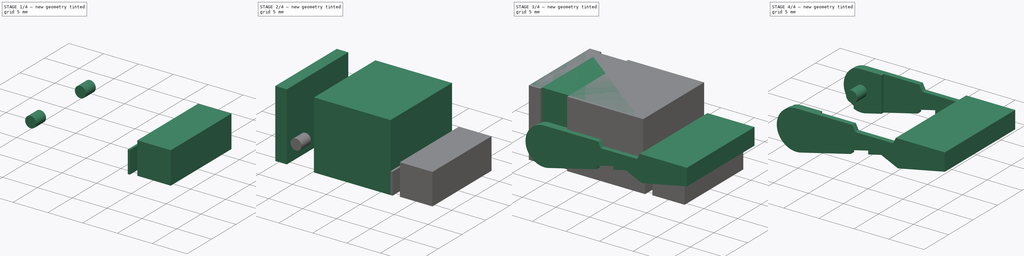
[diagram: build sequence overview — one tinted view per stage of 4, left to right]
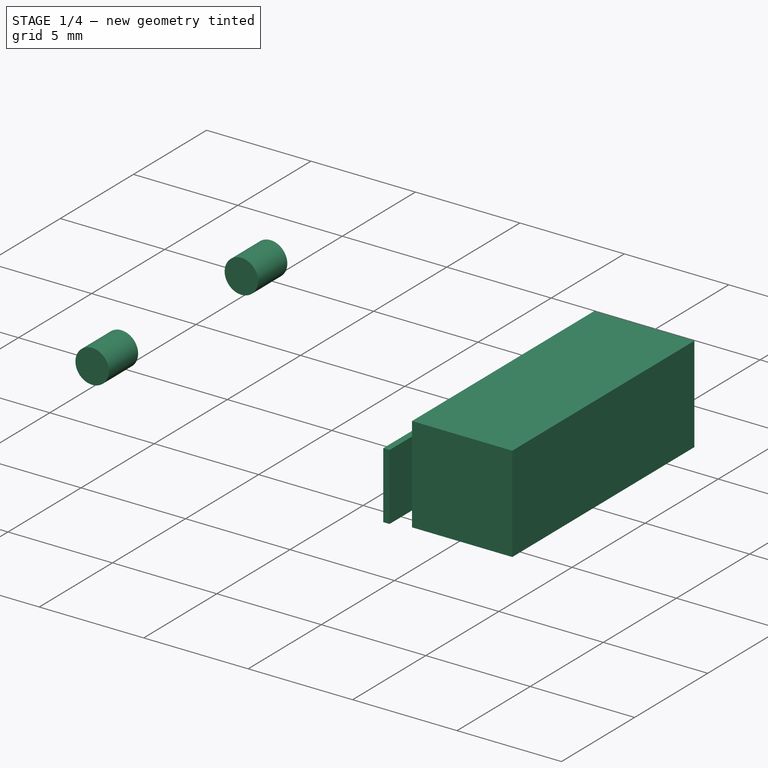
[diagram: stage 1 of 4 — iso view after this stage's code; geometry added in this stage tinted green]
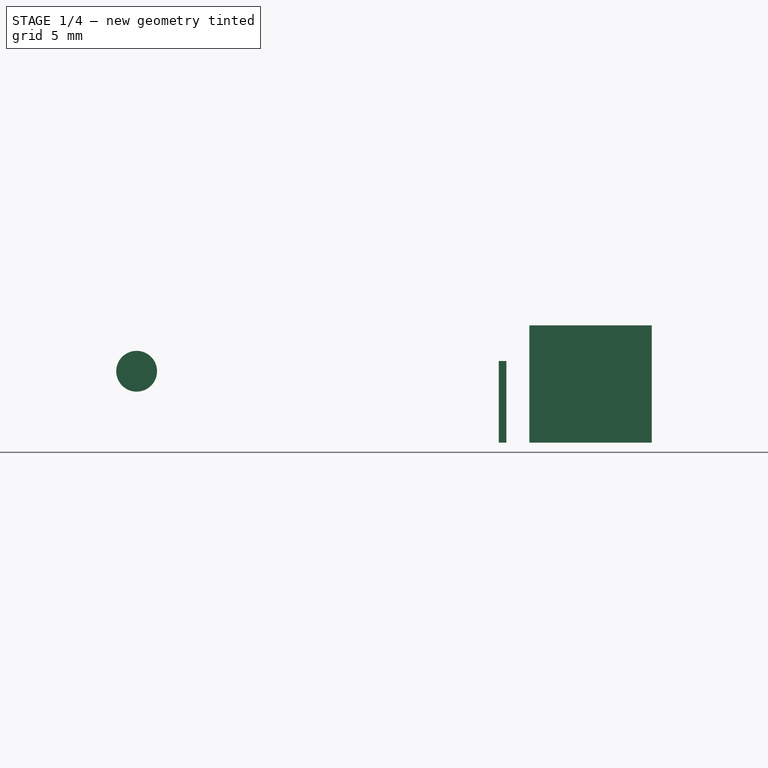
[diagram: stage 1 of 4 — front view after this stage's code; geometry added in this stage tinted green]
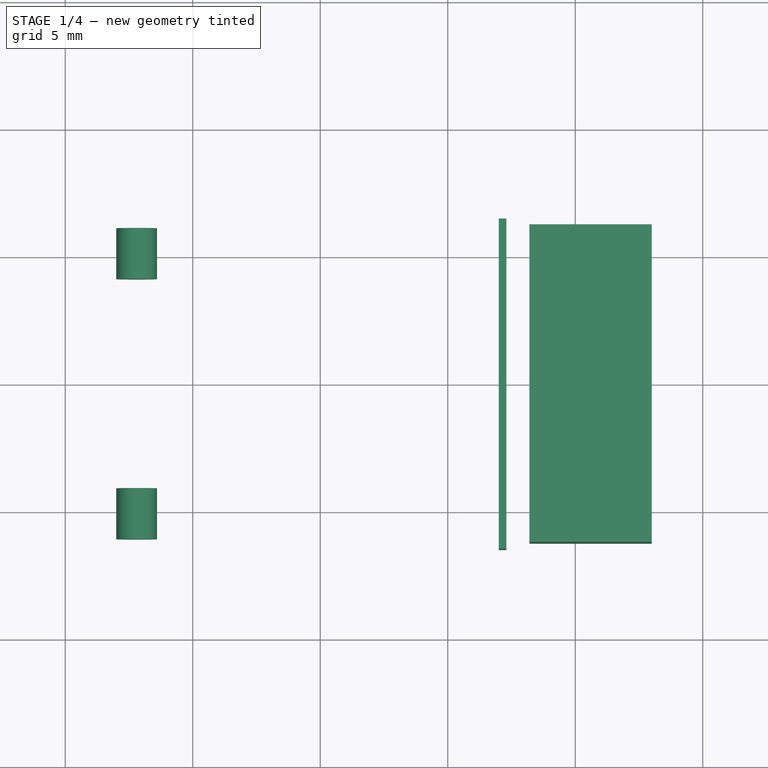
[diagram: stage 1 of 4 — top view after this stage's code; geometry added in this stage tinted green]
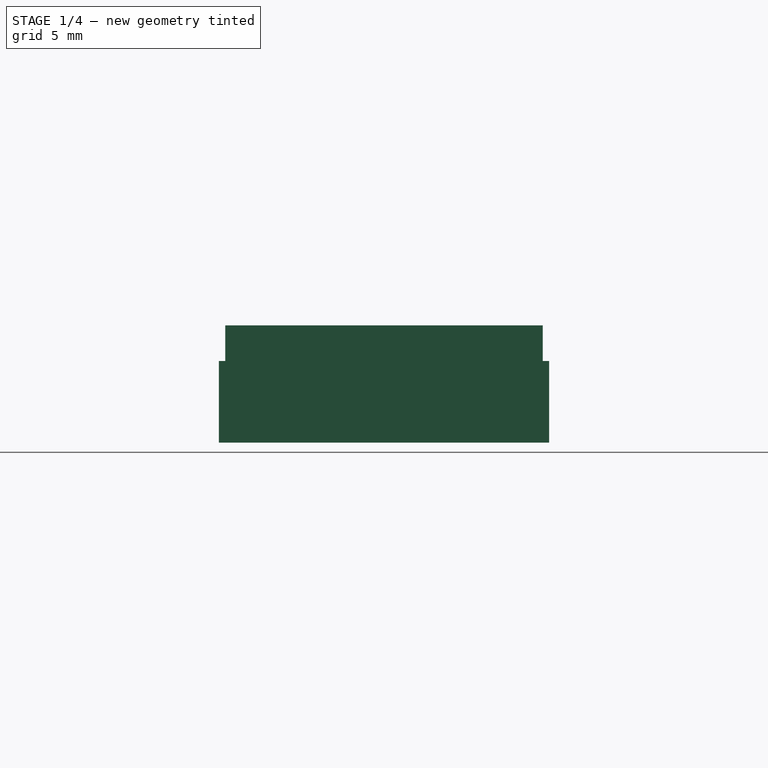
[diagram: stage 1 of 4 — right view after this stage's code; geometry added in this stage tinted green]
FCSTD DOCUMENT  (FreeCAD 0.18R4 (GitTag))
Label: lever
License: All rights reserved
LicenseURL: http://en.wikipedia.org/wiki/All_rights_reserved
objects: Part::Box×5, Part::Cut×3, Part::Compound×2, Part::Cylinder×2, Sketcher::SketchObject×1, Part::Extrusion×1, Part::MultiFuse×1
note: 15 computed .brp shape members not serialized (recipe doc carries the construction recipe); baked Part::Feature solids carry a one-line shape summary decoded from their .brp

FEATURE [Part::Box] Box003  label="Cube003"
  AttacherType = Attacher::AttachEngine3D
  Height = 4.6
  Length = 4.8
  Placement = pos=(18.2,-6.225,0) rot=(0,0,1;0rad)
  Width = 12.45
  expr: Placement.Base.z = 0
  expr: Length = 7.2 - 1.4 - 1
  expr: Placement.Base.y = -Width / 2
  expr: Width = 14.35 - 0.95 * 2
FEATURE [Part::Box] Box004  label="Cube004"
  AttacherType = Attacher::AttachEngine3D
  Height = 3.2
  Length = 0.3
  Placement = pos=(17,-6.475,0) rot=(0,0,1;0rad)
  Width = 12.95
  expr: Height = 5.6 - 2.4
  expr: Placement.Base.z = 0
  expr: Placement.Base.y = -Width / 2
  expr: Width = 12.95
FEATURE [Part::Cylinder] Cylinder
  Angle = 360
  AttacherType = Attacher::AttachEngine3D
  Height = 2
  Placement = pos=(2.8,-4.1,2.8) rot=(1,0,0;1.5708rad)
  Radius = 0.8
FEATURE [Part::Cylinder] Cylinder001
  Angle = 360
  AttacherType = Attacher::AttachEngine3D
  Height = 2
  Placement = pos=(2.8,6.1,2.8) rot=(1,0,0;1.5708rad)
  Radius = 0.8
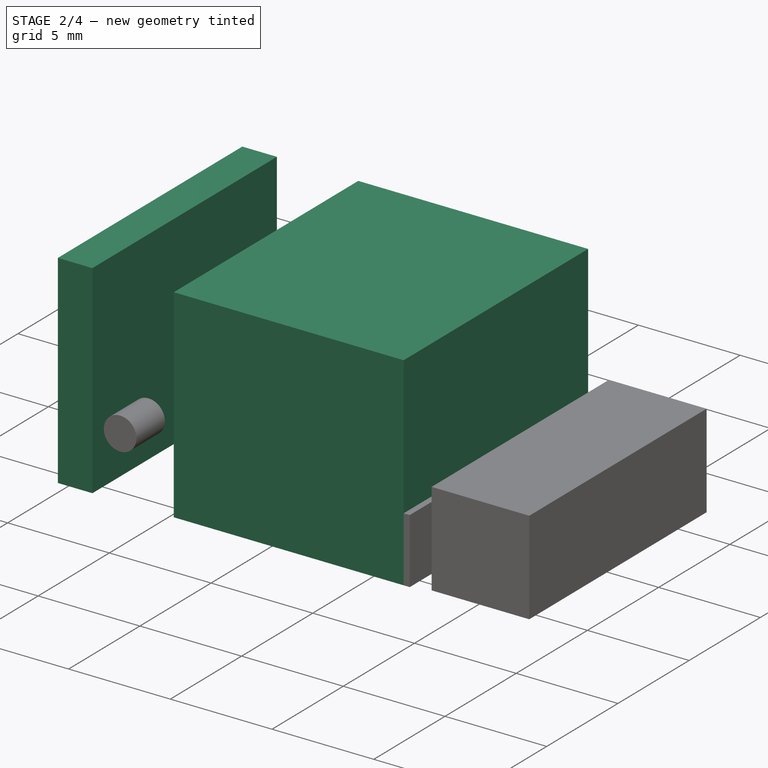
[diagram: stage 2 of 4 — iso view after this stage's code; geometry added in this stage tinted green]
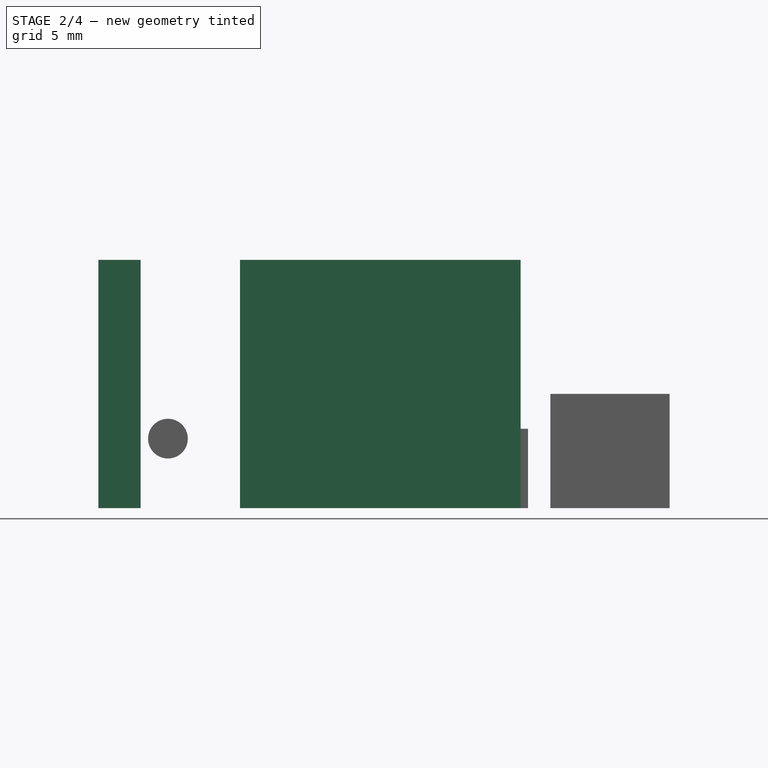
[diagram: stage 2 of 4 — front view after this stage's code; geometry added in this stage tinted green]
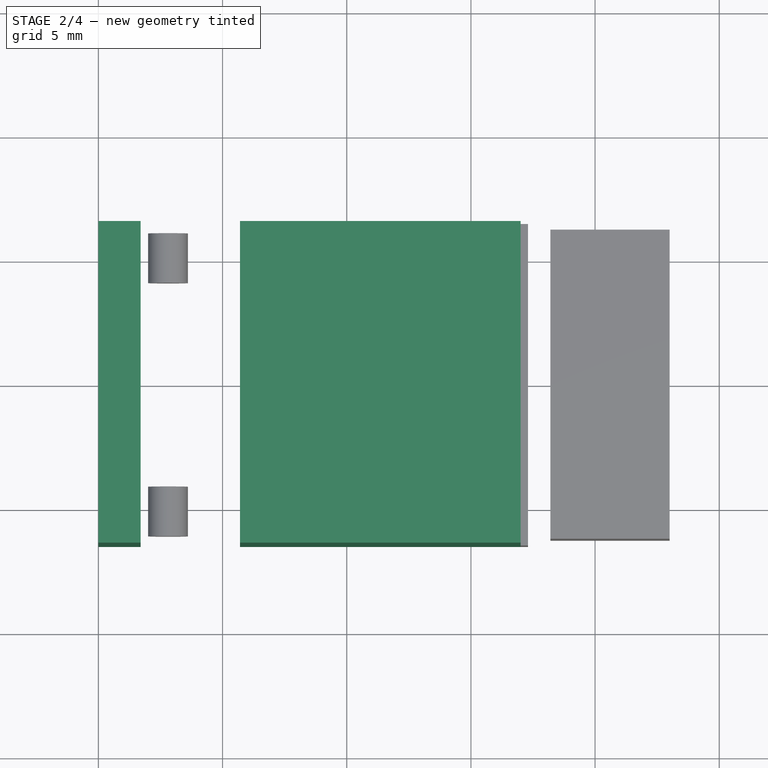
[diagram: stage 2 of 4 — top view after this stage's code; geometry added in this stage tinted green]
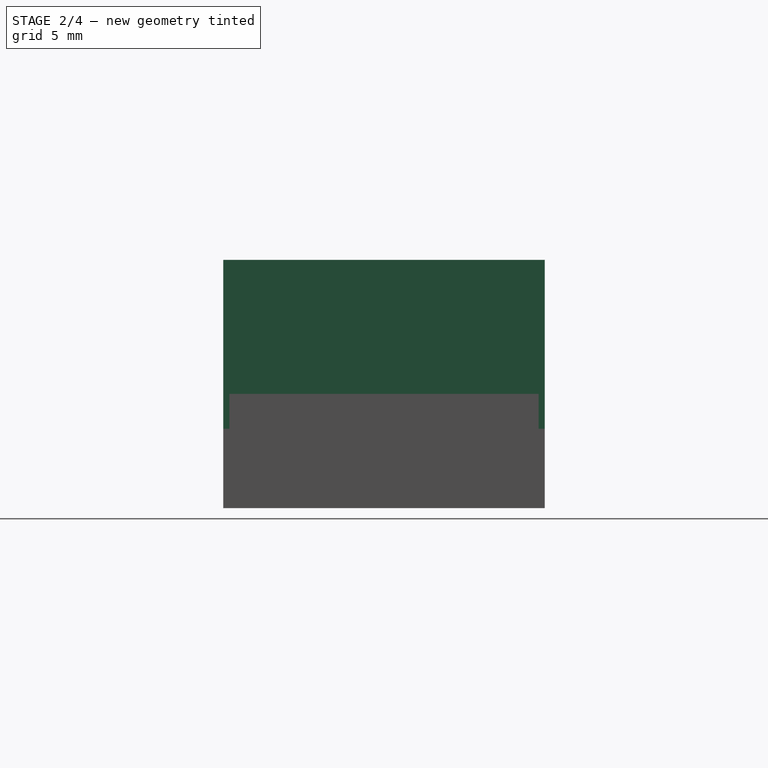
[diagram: stage 2 of 4 — right view after this stage's code; geometry added in this stage tinted green]
FEATURE [Part::Box] Box001  label="Cube001"
  AttacherType = Attacher::AttachEngine3D
  Height = 10
  Length = 1.7
  Placement = pos=(0,-6.475,0) rot=(0,0,1;0rad)
  Width = 12.95
  expr: Placement.Base.y = -Width / 2
FEATURE [Part::Box] Box002  label="Cube002"
  AttacherType = Attacher::AttachEngine3D
  Height = 10
  Length = 11.3
  Placement = pos=(5.7,-6.475,0) rot=(0,0,1;0rad)
  Width = 12.95
  expr: Placement.Base.x = 1.7 + 4
  expr: Placement.Base.y = -Width / 2
FEATURE [Part::Compound] Compound001
  Links = -> [Box003,Box004]
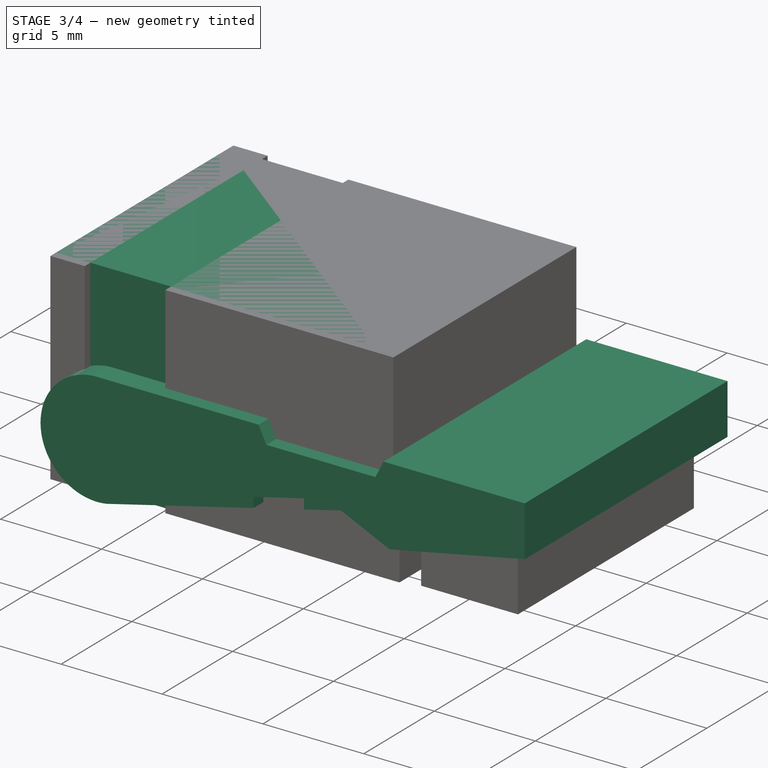
[diagram: stage 3 of 4 — iso view after this stage's code; geometry added in this stage tinted green]
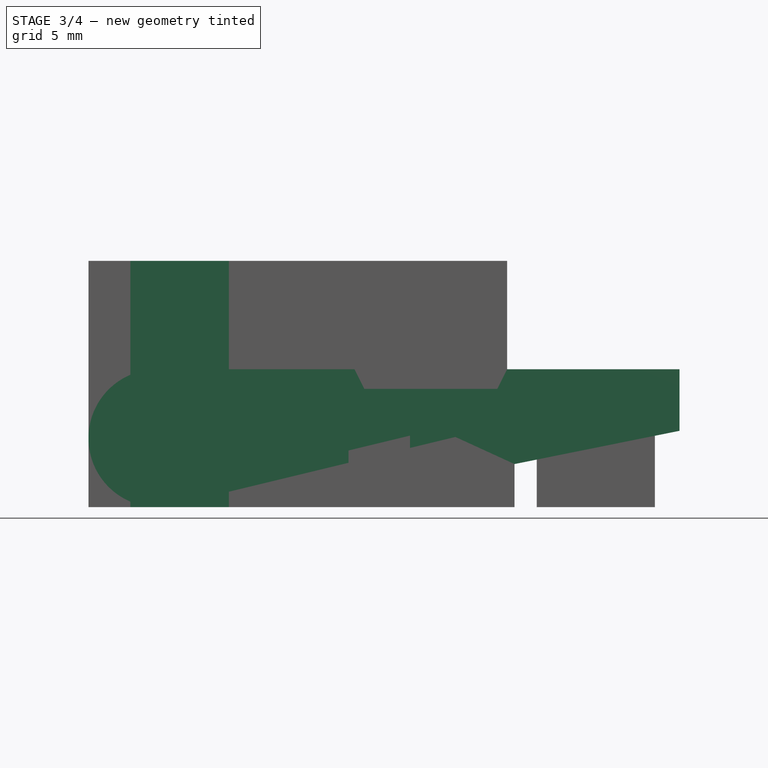
[diagram: stage 3 of 4 — front view after this stage's code; geometry added in this stage tinted green]
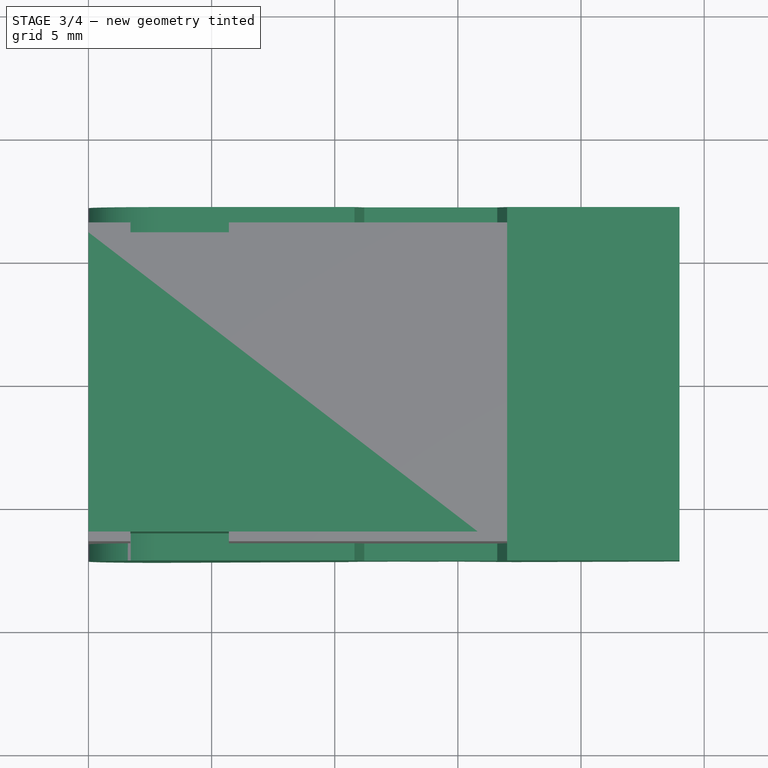
[diagram: stage 3 of 4 — top view after this stage's code; geometry added in this stage tinted green]
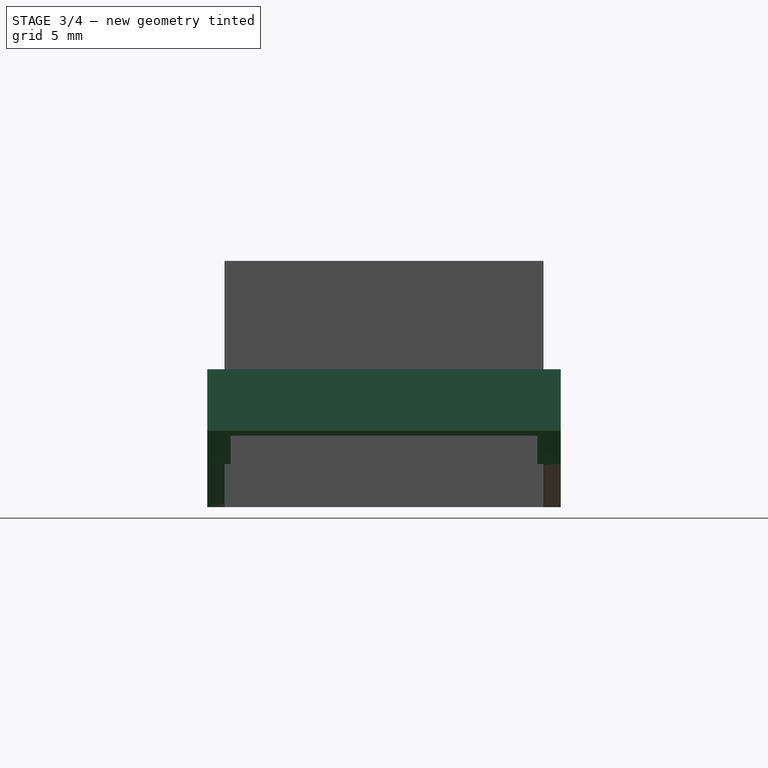
[diagram: stage 3 of 4 — right view after this stage's code; geometry added in this stage tinted green]
FEATURE [Sketcher::SketchObject] Sketch
  Placement = pos=(0,0,0) rot=(1,0,0;1.5708rad)
  expr: Constraints[24] = Constraints.La2
  expr: Constraints.La2 = (Constraints.A2 - 5.4mm) / 2
  expr: Constraints[4] = Sketch.Constraints.R1
  expr: Constraints[3] = Sketch.Constraints.R1
  sketch-geometry (14):
    g0: ArcOfCircle CenterX=2.8 CenterY=2.8 CenterZ=0 NormalX=0 NormalY=0 NormalZ=1 AngleXU=0 Radius=2.8 StartAngle=1.5708 EndAngle=4.88692
    g1: LineSegment StartX=24 StartY=5.6 StartZ=0 EndX=24 EndY=3.1 EndZ=0
    g2: LineSegment StartX=17.3 StartY=1.75 StartZ=0 EndX=24 EndY=3.1 EndZ=0
    g3: LineSegment StartX=17 StartY=5.6 StartZ=0 EndX=24 EndY=5.6 EndZ=0
    g4: LineSegment StartX=2.8 StartY=5.6 StartZ=0 EndX=10.8 EndY=5.6 EndZ=0
    g5: LineSegment StartX=11.2 StartY=4.8 StartZ=0 EndX=16.6 EndY=4.8 EndZ=0
    g6: LineSegment StartX=16.6 StartY=4.8 StartZ=0 EndX=17 EndY=5.6 EndZ=0
    g7: LineSegment StartX=11.2 StartY=4.8 StartZ=0 EndX=10.8 EndY=5.6 EndZ=0
    g8: LineSegment StartX=14.9 StartY=2.85 StartZ=0 EndX=17.3 EndY=1.75 EndZ=0
    g9: LineSegment StartX=10.5564 StartY=1.8 StartZ=0 EndX=10.5564 EndY=2.3 EndZ=0
    g10: LineSegment StartX=13.0564 StartY=2.40434 StartZ=0 EndX=13.0564 EndY=2.90434 EndZ=0
    g11: LineSegment StartX=3.28621 StartY=0.0425383 StartZ=0 EndX=10.5564 EndY=1.8 EndZ=0
    g12: LineSegment StartX=10.5564 StartY=2.3 StartZ=0 EndX=13.0564 EndY=2.90434 EndZ=0
    g13: LineSegment StartX=13.0564 StartY=2.40434 StartZ=0 EndX=14.9 EndY=2.85 EndZ=0
  constraints (43):
    c: Angle(g0) = 3.31613
    c: Vertical(g0,g0)
    c: Radius(g0) = 2.8  'R1'
    c: DistanceX(g-1,g0) = 2.8
    c: DistanceY(g-1,g0) = 2.8
    c: DistanceX(g-1,g1) = 24
    c: Vertical(g1)
    c: Distance(g1) = 2.5
    c: DistanceX(g2,g1) = 6.7
    c: Coincident(g2,g1)
    c: DistanceY(g2,g1) = 3.85
    c: Horizontal(g3)
    c: DistanceY(g-1,g1) = 5.6
    c: Coincident(g3,g1)
    c: Horizontal(g4)
    c: Coincident(g4,g0)
    c: Distance(g4,g3) = 6.2  'A2'
    c: Horizontal(g5)
    c: Coincident(g7,g4)
    c: Coincident(g7,g5)
    c: Coincident(g5,g6)
    c: Coincident(g6,g3)
    c: DistanceY(g5,g3) = 0.8
    c: DistanceX(g5,g3) = 0.4  'La2'
    c: DistanceX(g4,g5) = 0.4
    c: Coincident(g8,g2)
    c: DistanceY(g8,g5) = 1.95
    c: DistanceX(g-1,g8) = 14.9
    c: Vertical(g9)
    c: Distance(g9) = 0.5
    c: Parallel(g10,g9)
    c: Equal(g10,g9)
    c: DistanceY(g9,g4) = 3.3
    c: Coincident(g13,g10)
    c: Coincident(g10,g12)
    c: Coincident(g12,g9)
    c: Coincident(g11,g9)
    c: Coincident(g11,g0)
    c: Coincident(g13,g8)
    c: Parallel(g12,g11)
    c: Parallel(g13,g12)
    c: DistanceX(g9,g10) = 2.5
    c: Distance(g1,g3) = 7
FEATURE [Part::Extrusion] Extrude
  Base = -> Sketch
  Dir = (0,-1,2e-16)
  DirMode = 2
  FaceMakerClass = Part::FaceMakerBullseye
  LengthFwd = 14.35
  LengthRev = 0
  Placement = pos=(0,7.175,0) rot=(0,0,1;0rad)
  Solid = true
  Symmetric = false
  expr: Placement.Base.y = LengthFwd / 2
FEATURE [Part::Box] Box  label="Cube"
  AttacherType = Attacher::AttachEngine3D
  Height = 10
  Length = 15.8
  Placement = pos=(0,-6.075,0) rot=(0,0,1;0rad)
  Width = 12.15
  expr: Placement.Base.y = -Width / 2
FEATURE [Part::Compound] Compound
  Links = -> [Box002,Box001]
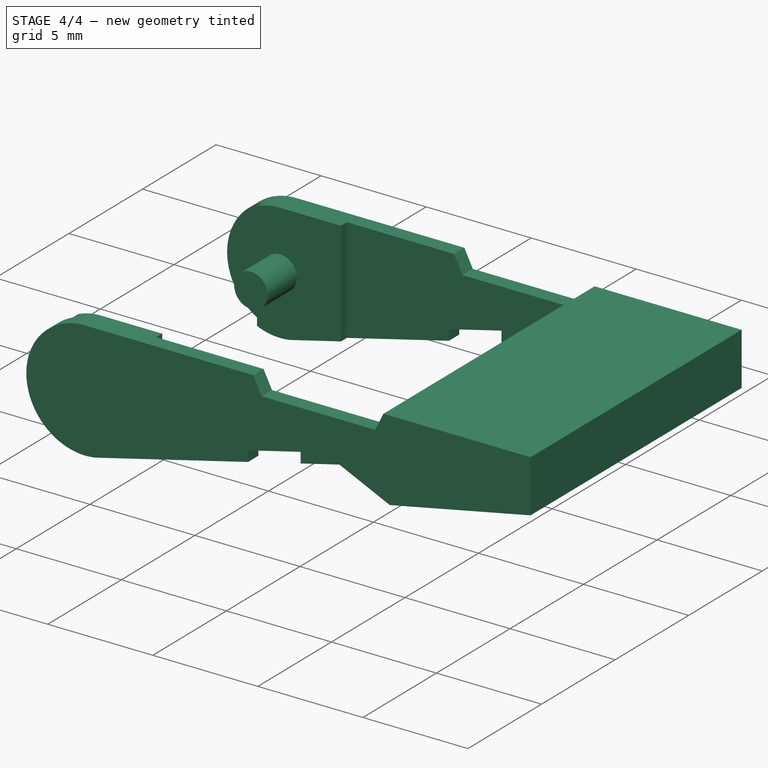
[diagram: stage 4 of 4 — iso view after this stage's code; geometry added in this stage tinted green]
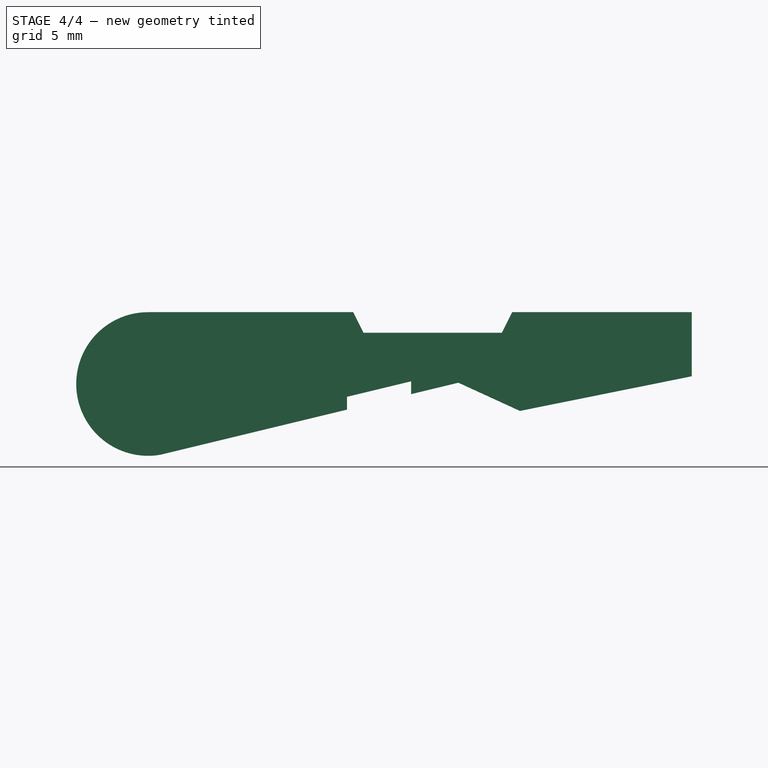
[diagram: stage 4 of 4 — front view after this stage's code; geometry added in this stage tinted green]
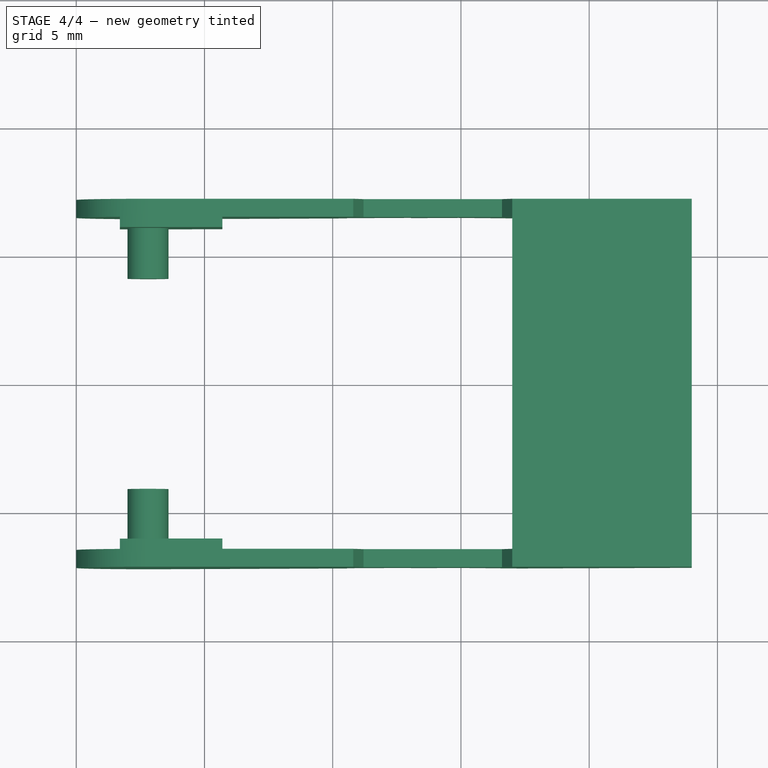
[diagram: stage 4 of 4 — top view after this stage's code; geometry added in this stage tinted green]
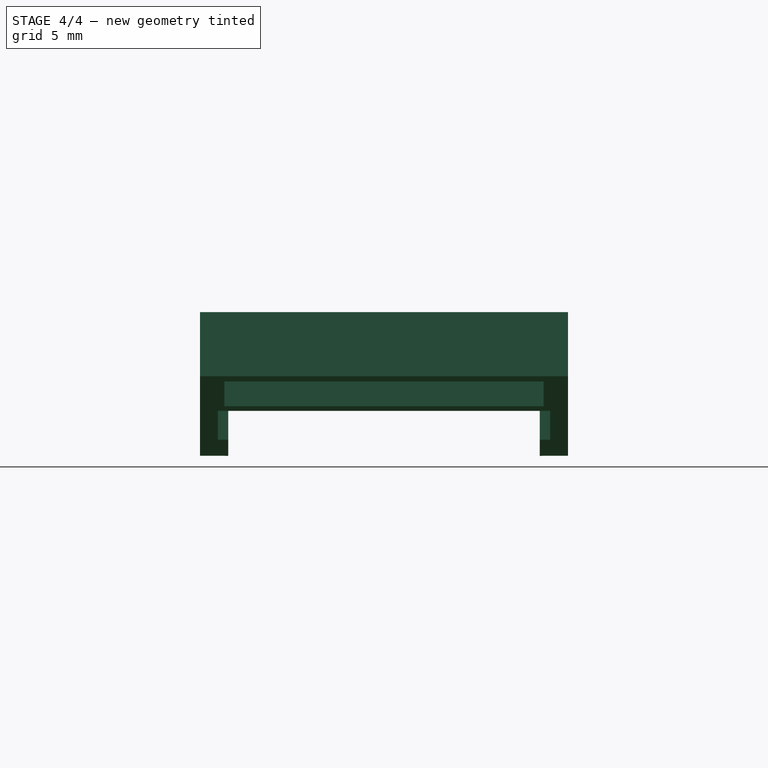
[diagram: stage 4 of 4 — right view after this stage's code; geometry added in this stage tinted green]
FEATURE [Part::Cut] Cut
  Base = -> Extrude
  Tool = -> Box
FEATURE [Part::Cut] Cut001
  Base = -> Cut
  Tool = -> Compound
FEATURE [Part::Cut] Cut002
  Base = -> Cut001
  Tool = -> Compound001
FEATURE [Part::MultiFuse] Fusion
  Shapes = -> [Cut002,Cylinder,Cylinder001]
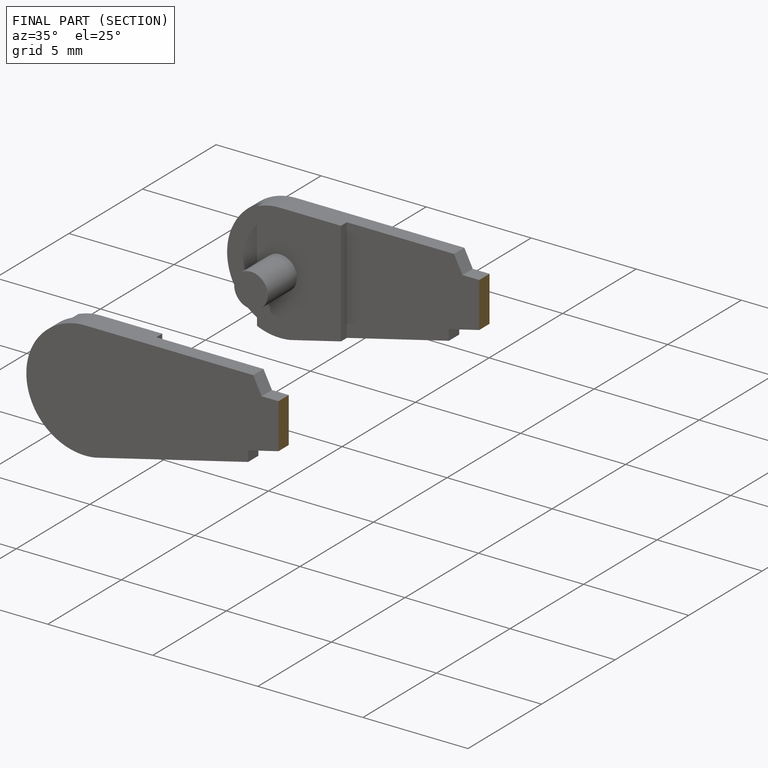
[diagram: finished part — half-section view (interior)]
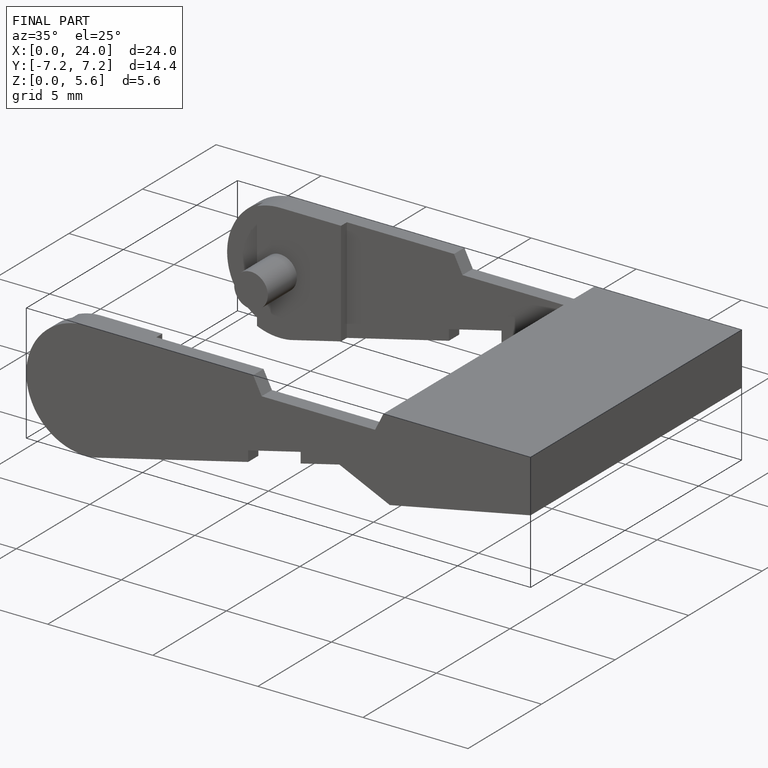
[diagram: finished part — iso view with bounding-box wireframe]
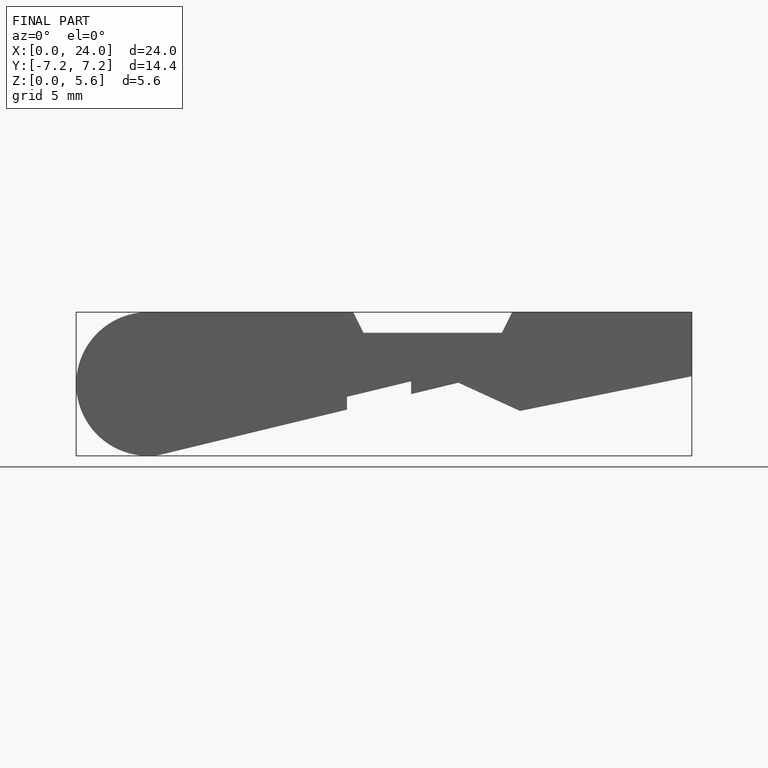
[diagram: finished part — front view with bounding-box wireframe]
